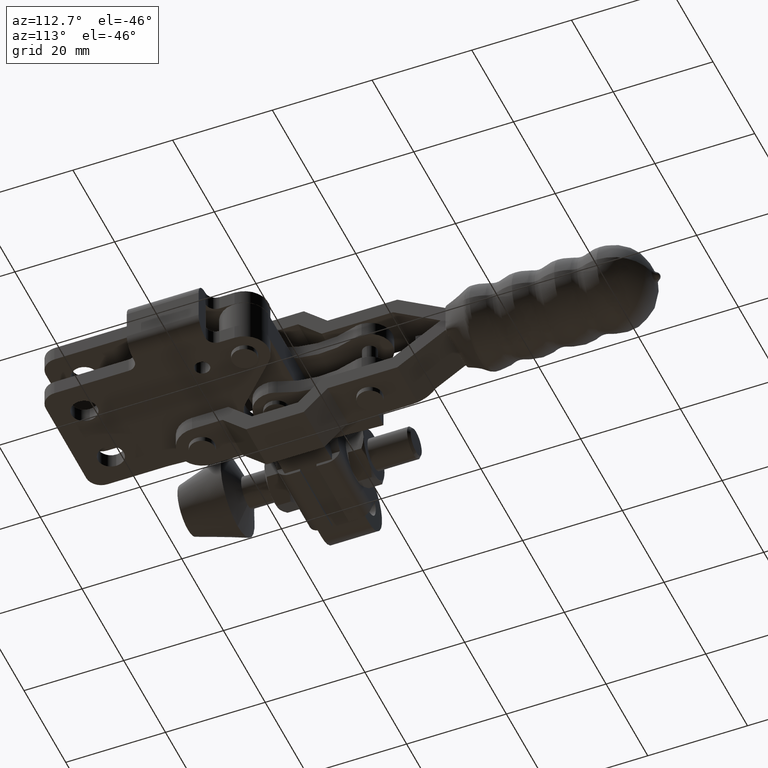
[diagram: clean part render]
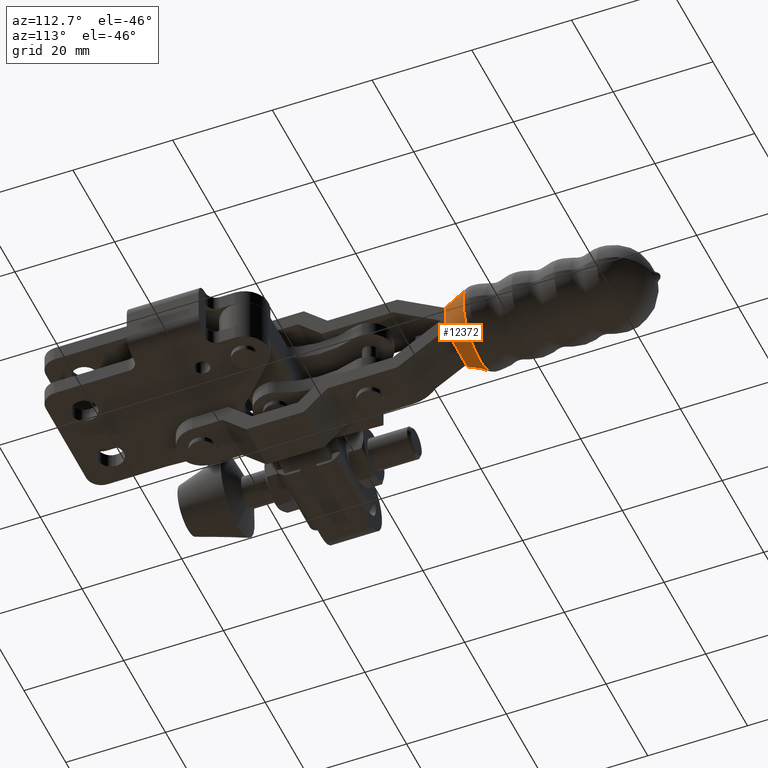
[diagram: same view with one face highlighted and labeled with its STEP entity id]
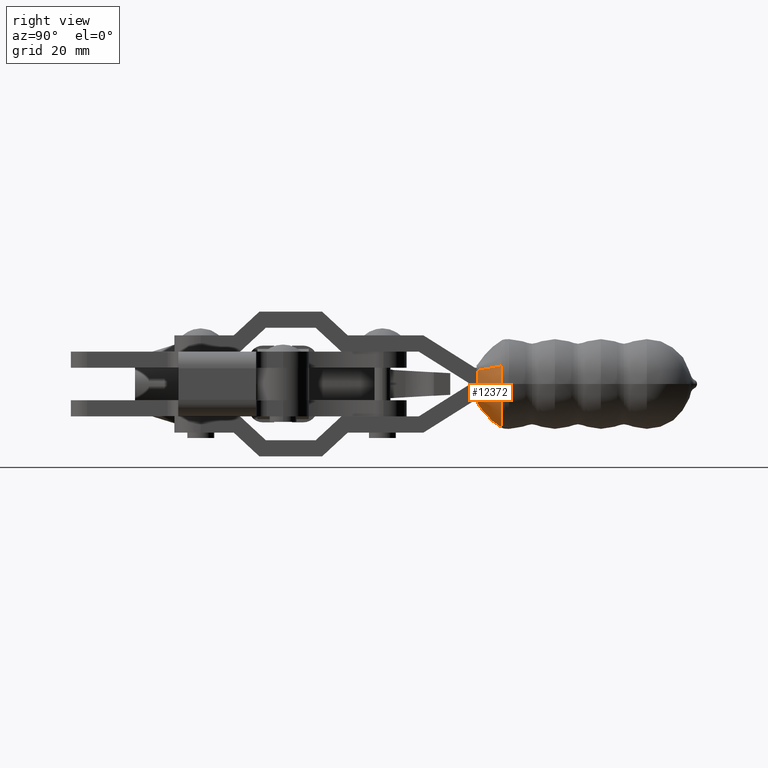
[diagram: same view with one face highlighted and labeled with its STEP entity id]
A machine part, auxiliary view. The second image highlights one B-rep face of the part: STEP entity #12372.
A second angle (right view) of the same face is appended — the face is thin or edge-on in the first view.
In plain terms, the highlighted face is a freeform B-spline surface patch.
Its self-contained STEP definition (entity closure, byte-faithful):
#14 = EDGE_CURVE ( 'NONE', #7230, #7359, #11141, .T. ) ;
#25 = CARTESIAN_POINT ( 'NONE',  ( -28.59685077037510600, 67.86217773445851300, -1.733508512131921400 ) ) ;
#32 = CARTESIAN_POINT ( 'NONE',  ( -21.41071770739004900, 63.29565351529366500, -3.554199398570398600 ) ) ;
#60 = CARTESIAN_POINT ( 'NONE',  ( -27.08059502295594400, 66.41472996804776600, -3.391362433251619000 ) ) ;
#107 = CARTESIAN_POINT ( 'NONE',  ( -25.87136958812624200, 64.80961883612944500, -3.905229992903095600 ) ) ;
#116 = CARTESIAN_POINT ( 'NONE',  ( -15.11637784114788000, 63.38712128945055500, -2.651328539607645100 ) ) ;
#146 = CARTESIAN_POINT ( 'NONE',  ( -20.66037234350212900, 63.25344415514673800, -3.500000000000389000 ) ) ;
#191 = CARTESIAN_POINT ( 'NONE',  ( -13.99440651410349200, 67.86217773445849800, -4.541642735248435900 ) ) ;
#224 = VERTEX_POINT ( 'NONE', #2312 ) ;
#233 = CARTESIAN_POINT ( 'NONE',  ( -14.12119599244192800, 66.40418438406837300, -3.137284130259907000 ) ) ;
#287 = CARTESIAN_POINT ( 'NONE',  ( -14.28006421134263500, 64.78678060654176800, -2.497197712268269100E-006 ) ) ;
#327 = CARTESIAN_POINT ( 'NONE',  ( -15.16037234350213000, 63.25344415514674500, 2.499999999372708000 ) ) ;
#359 = CARTESIAN_POINT ( 'NONE',  ( -15.10321317632978700, 63.35627647389072300, 0.8334545759779454800 ) ) ;
#604 = CARTESIAN_POINT ( 'NONE',  ( -15.49902928182962500, 63.38888158722293300, -3.321401571994040800 ) ) ;
#668 = CARTESIAN_POINT ( 'NONE',  ( -22.16098735645960700, 63.29943348572634700, -3.556354179234992000 ) ) ;
#682 = B_SPLINE_CURVE_WITH_KNOTS ( 'NONE', 3,
 ( #1992, #8142, #10140, #4080, #11167, #5112, #12153, #6151, #13181, #7168 ),
 .UNSPECIFIED., .F., .F.,
 ( 4, 2, 2, 2, 4 ),
 ( -5.989374075165386400E-008, 0.0003909684269582911500, 0.0007819967476573340200, 0.001173025068356376800, 0.001564053389055419500 ),
 .UNSPECIFIED. ) ;
#792 = ORIENTED_EDGE ( 'NONE', *, *, #4713, .T. ) ;
#820 = VERTEX_POINT ( 'NONE', #11648 ) ;
#860 = CARTESIAN_POINT ( 'NONE',  ( -14.44093346233140300, 66.41005908748482500, 3.741929902640940500 ) ) ;
#895 = CARTESIAN_POINT ( 'NONE',  ( -16.29098009008944500, 64.76396972631985700, 4.379833260927069800 ) ) ;
#940 = CARTESIAN_POINT ( 'NONE',  ( -22.88764295937921400, 63.25344415514673800, 3.499999999999601700 ) ) ;
#978 = CARTESIAN_POINT ( 'NONE',  ( -27.57174478939553500, 67.86217773445851300, 4.158255717099888400 ) ) ;
#1015 = CARTESIAN_POINT ( 'NONE',  ( -27.46002236500567400, 66.38004713782561300, 2.531962528561010100 ) ) ;
#1050 = CARTESIAN_POINT ( 'NONE',  ( -15.11374191858637800, 63.38693527292156900, 2.521155462841502700 ) ) ;
#1060 = CARTESIAN_POINT ( 'NONE',  ( -26.96150103930755300, 64.79549411808595500, -1.395587559035471800 ) ) ;
#1108 = CARTESIAN_POINT ( 'NONE',  ( -26.11259450977874500, 63.25344415514673800, -2.888971973730144700 ) ) ;
#1134 = CARTESIAN_POINT ( 'NONE',  ( -25.19625132202470000, 63.39134112229959300, -3.542451302486940200 ) ) ;
#1158 = CARTESIAN_POINT ( 'NONE',  ( -26.28759238556151700, 67.86217773445851300, -5.896036901855827800 ) ) ;
#1197 = CARTESIAN_POINT ( 'NONE',  ( -17.43118836383469600, 66.07731113279588400, -6.568222940374338800 ) ) ;
#1239 = CARTESIAN_POINT ( 'NONE',  ( -15.23562341838326800, 64.82112998357239100, -3.770433091009290000 ) ) ;
#1288 = CARTESIAN_POINT ( 'NONE',  ( -15.16037234350213000, 63.25344415514674500, -2.624783592458684200 ) ) ;
#1333 = CARTESIAN_POINT ( 'NONE',  ( -12.72389391662913600, 67.86217773445851300, 1.733508512131142000 ) ) ;
#1412 = CARTESIAN_POINT ( 'NONE',  ( -15.10390193164297800, 63.36530394600534100, -1.666846277751224700 ) ) ;
#1515 = B_SPLINE_CURVE_WITH_KNOTS ( 'NONE', 3,
 ( #11614, #11665, #9321, #2342 ),
 .UNSPECIFIED., .F., .F.,
 ( 4, 4 ),
 ( 0.0000000000000000000, 0.9717044111243854400 ),
 .UNSPECIFIED. ) ;
#1520 = VERTEX_POINT ( 'NONE', #7306 ) ;
#1526 = ORIENTED_EDGE ( 'NONE', *, *, #3543, .T. ) ;
#1629 = EDGE_CURVE ( 'NONE', #9119, #1721, #9127, .T. ) ;
#1663 = CARTESIAN_POINT ( 'NONE',  ( -15.11365901787371700, 63.38675462020719200, 2.514090349800999700 ) ) ;
#1682 = CARTESIAN_POINT ( 'NONE',  ( -15.31747800420825500, 63.38741934016381700, -3.134215451758072500 ) ) ;
#1709 = CARTESIAN_POINT ( 'NONE',  ( -15.11374215309768800, 63.38693578395724900, 2.521175448385817800 ) ) ;
#1711 = VERTEX_POINT ( 'NONE', #11351 ) ;
#1721 = VERTEX_POINT ( 'NONE', #9453 ) ;
#1803 = CARTESIAN_POINT ( 'NONE',  ( -15.11365916946805800, 63.38675494322329500, -2.514099072277054000 ) ) ;
#1846 = CARTESIAN_POINT ( 'NONE',  ( -14.61110389430739300, 64.82606397978638300, 2.749667477042284400 ) ) ;
#1889 = CARTESIAN_POINT ( 'NONE',  ( -15.44700713563533200, 63.25344415514674500, 3.242422886584518600 ) ) ;
#1935 = CARTESIAN_POINT ( 'NONE',  ( -16.95864119665633800, 67.86217773445851300, 7.482217043222414400 ) ) ;
#1968 = CARTESIAN_POINT ( 'NONE',  ( -25.66478027444167900, 66.27449532297966100, 5.259667452254515900 ) ) ;
#1992 = CARTESIAN_POINT ( 'NONE',  ( -25.21423687797788200, 63.39240676943508400, -3.541894457099183500 ) ) ;
#2003 = CARTESIAN_POINT ( 'NONE',  ( -26.37677400679339000, 64.83175161670898500, 3.492177016874644700 ) ) ;
#2042 = CARTESIAN_POINT ( 'NONE',  ( -15.11374173584640900, 63.38693486700741900, -2.521135670013632300 ) ) ;
#2055 = CARTESIAN_POINT ( 'NONE',  ( -26.16037234350212900, 63.25344415514673800, 2.077217232703579200 ) ) ;
#2063 = ORIENTED_EDGE ( 'NONE', *, *, #9942, .T. ) ;
#2107 = CARTESIAN_POINT ( 'NONE',  ( -28.23291278512271800, 67.86217773445851300, -2.822329274111425400 ) ) ;
#2142 = CARTESIAN_POINT ( 'NONE',  ( -26.87981273420616900, 66.41005910534764200, -3.741927400077077700 ) ) ;
#2163 = CARTESIAN_POINT ( 'NONE',  ( -25.21419696706695400, 63.39240440466506500, -3.541895692838549900 ) ) ;
#2188 = CARTESIAN_POINT ( 'NONE',  ( -25.02976583605593300, 64.76396969779693800, -4.379832008545722700 ) ) ;
#2252 = CARTESIAN_POINT ( 'NONE',  ( -18.43310172762505400, 63.25344415514674500, -3.500000000000387700 ) ) ;
#2303 = CARTESIAN_POINT ( 'NONE',  ( -13.74899989760869600, 67.86217773445851300, -4.158255717100669100 ) ) ;
#2312 = CARTESIAN_POINT ( 'NONE',  ( -13.32129355269926700, 67.86217773445849800, 3.335944905909685500 ) ) ;
#2342 = CARTESIAN_POINT ( 'NONE',  ( -15.11374238761837300, 63.38693629499125800, 2.521195433930064800 ) ) ;
#2346 = CARTESIAN_POINT ( 'NONE',  ( -13.86072352009450800, 66.38004713740225800, -2.531965748103189600 ) ) ;
#2368 = CARTESIAN_POINT ( 'NONE',  ( -16.14243634537453800, 63.39028891913030600, -3.542988139781885000 ) ) ;
#2371 = CARTESIAN_POINT ( 'NONE',  ( -15.11374243961766700, 63.38693640060494500, -2.521195646282143900 ) ) ;
#2393 = CARTESIAN_POINT ( 'NONE',  ( -14.35924291887607000, 64.79549412481841800, 1.395585106292565500 ) ) ;
#2425 = CARTESIAN_POINT ( 'NONE',  ( -25.21423687797788200, 63.39240676943508400, -3.541894457099183500 ) ) ;
#2427 = CARTESIAN_POINT ( 'NONE',  ( -15.10390184324692300, 63.36530348996338800, 1.666821302933913000 ) ) ;
#2626 = CARTESIAN_POINT ( 'NONE',  ( -27.93054533697051400, 67.86217773445858400, -3.487537660046323000 ) ) ;
#2737 = CARTESIAN_POINT ( 'NONE',  ( -15.11374243961766700, 63.38693640060494500, -2.521195646282143900 ) ) ;
#2859 = ORIENTED_EDGE ( 'NONE', *, *, #14, .T. ) ;
#2885 = CARTESIAN_POINT ( 'NONE',  ( -13.52854442048895000, 67.86217773445855500, -3.767653287943438600 ) ) ;
#2903 = CARTESIAN_POINT ( 'NONE',  ( -13.39019935003380400, 67.86217773445849800, 3.487537660045672900 ) ) ;
#2945 = CARTESIAN_POINT ( 'NONE',  ( -14.67214061304732200, 66.38881585487973800, 4.081102566512451600 ) ) ;
#2982 = CARTESIAN_POINT ( 'NONE',  ( -17.93214239015328100, 64.66537753433743800, 5.034110041957690700 ) ) ;
#2987 = B_SPLINE_CURVE_WITH_KNOTS ( 'NONE', 3,
 ( #10251, #11279, #1134, #8301, #2163, #9310, #3225 ),
 .UNSPECIFIED., .F., .F.,
 ( 4, 3, 4 ),
 ( 0.0000000000000000000, 5.389710358306839500E-005, 5.395710358307060700E-005 ),
 .UNSPECIFIED. ) ;
#3023 = CARTESIAN_POINT ( 'NONE',  ( -24.39474795603560200, 63.25344415514673800, 3.499999999999605600 ) ) ;
#3069 = CARTESIAN_POINT ( 'NONE',  ( -27.79220026651529100, 67.86217773445851300, 3.767653287942651600 ) ) ;
#3107 = CARTESIAN_POINT ( 'NONE',  ( -27.76262873487382200, 66.33754405852700100, 1.550157479259302900 ) ) ;
#3144 = CARTESIAN_POINT ( 'NONE',  ( -26.81019813875174400, 64.81674564677497600, -2.304587792361288700 ) ) ;
#3152 = B_SPLINE_CURVE_WITH_KNOTS ( 'NONE', 3,
 ( #12907, #116, #5453, #8659, #1682, #604, #6020, #5798, #9277, #9865 ),
 .UNSPECIFIED., .F., .F.,
 ( 4, 2, 2, 2, 4 ),
 ( -5.998032529275255900E-008, 0.0003904191419590533200, 0.0007808982642433993300, 0.001171377386527745500, 0.001561856508812091600 ),
 .UNSPECIFIED. ) ;
#3192 = CARTESIAN_POINT ( 'NONE',  ( -25.87373755136893600, 63.25344415514674500, -3.242422886585292200 ) ) ;
#3225 = CARTESIAN_POINT ( 'NONE',  ( -25.21423687797788200, 63.39240676943508400, -3.541894457099183500 ) ) ;
#3247 = CARTESIAN_POINT ( 'NONE',  ( -24.36210349034789500, 67.86217773445851300, -7.482217043223183600 ) ) ;
#3294 = CARTESIAN_POINT ( 'NONE',  ( -15.65596722937116400, 66.27449538959609800, -5.259670272602082100 ) ) ;
#3334 = CARTESIAN_POINT ( 'NONE',  ( -14.94397158405657100, 64.83175160597426200, -3.492178507849468300 ) ) ;
#3384 = CARTESIAN_POINT ( 'NONE',  ( -15.16037234350213000, 63.25344415514674500, -2.077217232704361600 ) ) ;
#3429 = CARTESIAN_POINT ( 'NONE',  ( -13.08783190188152500, 67.86217773445849800, 2.822329274110647800 ) ) ;
#3543 = EDGE_CURVE ( 'NONE', #4120, #10617, #3152, .T. ) ;
#3561 = CARTESIAN_POINT ( 'NONE',  ( -19.91006478821558500, 63.29565333401684800, -3.554199333424658700 ) ) ;
#3617 = CARTESIAN_POINT ( 'NONE',  ( -12.59867196777502600, 67.86217773445851300, -3.967678686478328600E-013 ) ) ;
#3934 = CARTESIAN_POINT ( 'NONE',  ( -14.64078309908190300, 64.82881426923889000, 2.881031666282993800 ) ) ;
#3964 = CARTESIAN_POINT ( 'NONE',  ( -15.11374197043058000, 63.38693537819941100, -2.521155662103393300 ) ) ;
#3967 = CARTESIAN_POINT ( 'NONE',  ( -16.16037234358134700, 63.38924878677582300, -3.543506530889019200 ) ) ;
#3973 = CARTESIAN_POINT ( 'NONE',  ( -15.79910338840238800, 63.25344415514674500, 3.459759483545663100 ) ) ;
#4015 = CARTESIAN_POINT ( 'NONE',  ( -20.66037234350212200, 67.86217773445848400, 8.352547381350165200 ) ) ;
#4022 = CARTESIAN_POINT ( 'NONE',  ( -27.99945113430497300, 67.86217773445851300, -3.335944905910462700 ) ) ;
#4058 = CARTESIAN_POINT ( 'NONE',  ( -26.46708882033791400, 66.36579350468231600, 4.310463614909848800 ) ) ;
#4080 = CARTESIAN_POINT ( 'NONE',  ( -25.71269480469608100, 63.38971674834371600, -3.397125375761127500 ) ) ;
#4092 = CARTESIAN_POINT ( 'NONE',  ( -26.59659374667862200, 64.83408706094660100, 3.140169131196203000 ) ) ;
#4094 = CARTESIAN_POINT ( 'NONE',  ( -27.13473075420818100, 67.86217773445854100, -4.806858999310121800 ) ) ;
#4120 = VERTEX_POINT ( 'NONE', #2737 ) ;
#4133 = CARTESIAN_POINT ( 'NONE',  ( -26.16037234350212900, 63.25344415514673800, 1.241022134309190300 ) ) ;
#4181 = CARTESIAN_POINT ( 'NONE',  ( -27.93054533697043600, 67.86217773445851300, -3.487537660046448700 ) ) ;
#4192 = B_SPLINE_CURVE_WITH_KNOTS ( 'NONE', 3,
 ( #12270, #9976, #8267, #10723, #7270 ),
 .UNSPECIFIED., .F., .F.,
 ( 4, 1, 4 ),
 ( 0.9295890400382791400, 0.9647945200191394600, 1.000000000000000000 ),
 .UNSPECIFIED. ) ;
#4227 = CARTESIAN_POINT ( 'NONE',  ( -26.64860578204293200, 66.38881588086778200, -4.081100078991514800 ) ) ;
#4246 = FACE_OUTER_BOUND ( 'NONE', #8036, .T. ) ;
#4262 = CARTESIAN_POINT ( 'NONE',  ( -15.11357737732938700, 63.38657590826428400, -2.507062442631548600 ) ) ;
#4269 = CARTESIAN_POINT ( 'NONE',  ( -23.38860420906735600, 64.66537745352121600, -5.034108968751812800 ) ) ;
#4306 = CARTESIAN_POINT ( 'NONE',  ( -16.92599673096865600, 63.25344415514674500, -3.500000000000387700 ) ) ;
#4366 = CARTESIAN_POINT ( 'NONE',  ( -13.52854442048895000, 67.86217773445851300, -3.767653287943436300 ) ) ;
#4410 = CARTESIAN_POINT ( 'NONE',  ( -13.55811662103171000, 66.33754404163113300, -1.550160976912246600 ) ) ;
#4456 = CARTESIAN_POINT ( 'NONE',  ( -14.51054695411301600, 64.81674564750302600, 2.304588809284127600 ) ) ;
#4495 = CARTESIAN_POINT ( 'NONE',  ( -15.11349600151571900, 63.38639700697301300, 2.499999999654158000 ) ) ;
#4598 = CARTESIAN_POINT ( 'NONE',  ( -27.79220026651534100, 67.86217773445855500, -3.767653287943369700 ) ) ;
#4665 = ORIENTED_EDGE ( 'NONE', *, *, #5618, .T. ) ;
#4713 = EDGE_CURVE ( 'NONE', #1711, #4120, #10376, .T. ) ;
#4871 = CARTESIAN_POINT ( 'NONE',  ( -27.32633817290076500, 67.86217773445855500, -4.541642735248432300 ) ) ;
#4949 = ORIENTED_EDGE ( 'NONE', *, *, #1629, .T. ) ;
#4962 = CARTESIAN_POINT ( 'NONE',  ( -13.52854442048894000, 67.86217773445851300, 3.767653287942651600 ) ) ;
#5005 = CARTESIAN_POINT ( 'NONE',  ( -15.11349634719477700, 63.38639775936849200, -2.500025781877357000 ) ) ;
#5017 = CARTESIAN_POINT ( 'NONE',  ( -14.85365502282003400, 66.36579350851893400, 4.310462483560809400 ) ) ;
#5050 = CARTESIAN_POINT ( 'NONE',  ( -20.66037203388255600, 64.60794641732201200, 5.378788196882969600 ) ) ;
#5058 = CARTESIAN_POINT ( 'NONE',  ( -27.27986441304044600, 66.44009420930643700, -3.008857082872124200 ) ) ;
#5086 = CARTESIAN_POINT ( 'NONE',  ( -25.27564764918513500, 63.25344415514673800, 3.499999999999605600 ) ) ;
#5112 = CARTESIAN_POINT ( 'NONE',  ( -26.00324517610758300, 63.38741907725474800, -3.134275781985839300 ) ) ;
#5128 = CARTESIAN_POINT ( 'NONE',  ( -27.93054533697042900, 67.86217773445851300, 3.487537660045671100 ) ) ;
#5181 = CARTESIAN_POINT ( 'NONE',  ( -27.92098880499890300, 66.32011705706614200, 2.327073177621804500E-006 ) ) ;
#5188 = CARTESIAN_POINT ( 'NONE',  ( -19.15972175869865500, 63.29943271107981000, -3.556354389700895800 ) ) ;
#5217 = CARTESIAN_POINT ( 'NONE',  ( -26.67996220864932200, 64.82881426945556300, -2.881030337294242700 ) ) ;
#5257 = CARTESIAN_POINT ( 'NONE',  ( -25.52164129860185300, 63.25344415514674500, -3.459759483546452700 ) ) ;
#5305 = CARTESIAN_POINT ( 'NONE',  ( -20.66037234350211400, 67.86217773445851300, -8.352547381350950300 ) ) ;
#5351 = CARTESIAN_POINT ( 'NONE',  ( -14.85365805013328700, 66.36579349466198600, -4.310466542875460900 ) ) ;
#5379 = CARTESIAN_POINT ( 'NONE',  ( -27.99945113430497300, 67.86217773445851300, -3.335944905910462700 ) ) ;
#5392 = CARTESIAN_POINT ( 'NONE',  ( -14.72415174310418900, 64.83408706046212400, -3.140170650863629600 ) ) ;
#5445 = CARTESIAN_POINT ( 'NONE',  ( -15.16037234350212300, 63.25344415514674500, -1.241022134309972100 ) ) ;
#5453 = CARTESIAN_POINT ( 'NONE',  ( -15.14346733860624300, 63.38703287024581800, -2.782320642562773600 ) ) ;
#5493 = CARTESIAN_POINT ( 'NONE',  ( -13.32129355269926700, 67.86217773445849800, 3.335944905909685500 ) ) ;
#5582 = ORIENTED_EDGE ( 'NONE', *, *, #6465, .T. ) ;
#5612 = CARTESIAN_POINT ( 'NONE',  ( -15.11357712777895500, 63.38657536948962000, 2.507045190319064700 ) ) ;
#5618 = EDGE_CURVE ( 'NONE', #11106, #224, #4192, .T. ) ;
#5658 = CARTESIAN_POINT ( 'NONE',  ( -16.16037234358134700, 63.38924878677582300, -3.543506530889019200 ) ) ;
#5755 = ORIENTED_EDGE ( 'NONE', *, *, #7603, .T. ) ;
#5798 = CARTESIAN_POINT ( 'NONE',  ( -15.84555100115471800, 63.39173769702539800, -3.504452013763038800 ) ) ;
#5822 = CARTESIAN_POINT ( 'NONE',  ( -25.16039627163809200, 63.38925048690469300, -3.543505671517975600 ) ) ;
#6000 = CARTESIAN_POINT ( 'NONE',  ( -14.72415056935390100, 64.83408706134594000, 3.140168414439826500 ) ) ;
#6002 = EDGE_CURVE ( 'NONE', #10617, #7230, #7623, .T. ) ;
#6020 = CARTESIAN_POINT ( 'NONE',  ( -15.60846172053473400, 63.38971990361915900, -3.397326076710557100 ) ) ;
#6032 = CARTESIAN_POINT ( 'NONE',  ( -16.04509703781912600, 63.25344415514674500, 3.499999999999605200 ) ) ;
#6057 = CARTESIAN_POINT ( 'NONE',  ( -14.18601393279605300, 67.86217773445855500, -4.806858999310121800 ) ) ;
#6071 = CARTESIAN_POINT ( 'NONE',  ( -24.36210349034790900, 67.86217773445851300, 7.482217043222404700 ) ) ;
#6077 = CARTESIAN_POINT ( 'NONE',  ( -26.20700232796030700, 63.38693623797237100, -2.521195318184253700 ) ) ;
#6122 = CARTESIAN_POINT ( 'NONE',  ( -26.64860326153086200, 66.38881584268418100, 4.081103750636813700 ) ) ;
#6151 = CARTESIAN_POINT ( 'NONE',  ( -26.17700060266740900, 63.38703307195687800, -2.783008020768408500 ) ) ;
#6161 = CARTESIAN_POINT ( 'NONE',  ( -26.67996126068273500, 64.82881426953962000, 2.881032315863575600 ) ) ;
#6166 = B_SPLINE_CURVE_WITH_KNOTS ( 'NONE', 3,
 ( #4022, #5058, #12101, #6077 ),
 .UNSPECIFIED., .F., .F.,
 ( 4, 4 ),
 ( 0.0000000000000000000, 0.9717044232108360500 ),
 .UNSPECIFIED. ) ;
#6199 = CARTESIAN_POINT ( 'NONE',  ( -26.16037234350212900, 63.25344415514673800, -3.906199242960783000E-013 ) ) ;
#6250 = CARTESIAN_POINT ( 'NONE',  ( -27.79220026651529500, 67.86217773445851300, -3.767653287943426600 ) ) ;
#6302 = CARTESIAN_POINT ( 'NONE',  ( -26.46709152706735000, 66.36579351711213800, -4.310459985805803000 ) ) ;
#6342 = CARTESIAN_POINT ( 'NONE',  ( -20.66037514823064900, 64.60794641590676700, -5.378788181775009400 ) ) ;
#6380 = CARTESIAN_POINT ( 'NONE',  ( -16.04509703781912600, 63.25344415514673800, -3.500000000000389000 ) ) ;
#6441 = CARTESIAN_POINT ( 'NONE',  ( -13.39019935003380400, 67.86217773445849800, -3.487537660046454900 ) ) ;
#6465 = EDGE_CURVE ( 'NONE', #820, #11106, #8630, .T. ) ;
#6489 = CARTESIAN_POINT ( 'NONE',  ( -13.39975607918313800, 66.32011705793681200, -4.994395032398730400E-006 ) ) ;
#6533 = CARTESIAN_POINT ( 'NONE',  ( -14.61110389430739300, 64.82606397978638300, 2.749667477042284400 ) ) ;
#6555 = VERTEX_POINT ( 'NONE', #2425 ) ;
#6671 = CARTESIAN_POINT ( 'NONE',  ( -16.10650816742076300, 63.39240643049917900, -3.541894646774326200 ) ) ;
#7012 = CARTESIAN_POINT ( 'NONE',  ( -13.74899989760869400, 67.86217773445849800, 4.158255717099892800 ) ) ;
#7059 = CARTESIAN_POINT ( 'NONE',  ( -15.65596344921023000, 66.27449529749297600, 5.259666521854534000 ) ) ;
#7101 = CARTESIAN_POINT ( 'NONE',  ( -23.38860171445882200, 64.66537755747079100, 5.034110336531957100 ) ) ;
#7143 = CARTESIAN_POINT ( 'NONE',  ( -25.52164129860186000, 63.25344415514674500, 3.459759483545664000 ) ) ;
#7168 = CARTESIAN_POINT ( 'NONE',  ( -26.20700232796030700, 63.38693623797237100, -2.521195318184253700 ) ) ;
#7184 = CARTESIAN_POINT ( 'NONE',  ( -28.23291278512271800, 67.86217773445851300, 2.822329274110647400 ) ) ;
#7230 = VERTEX_POINT ( 'NONE', #3967 ) ;
#7232 = CARTESIAN_POINT ( 'NONE',  ( -27.76262973511297000, 66.33754408102518600, -1.550152983760968200 ) ) ;
#7270 = CARTESIAN_POINT ( 'NONE',  ( -13.32129355269926700, 67.86217773445849800, 3.335944905909685500 ) ) ;
#7273 = CARTESIAN_POINT ( 'NONE',  ( -26.59659476636734600, 64.83408706159727300, -3.140167203490881000 ) ) ;
#7306 = CARTESIAN_POINT ( 'NONE',  ( -26.20700232796030700, 63.38693623797237100, -2.521195318184253700 ) ) ;
#7307 = CARTESIAN_POINT ( 'NONE',  ( -25.27564764918513500, 63.25344415514673800, -3.500000000000387700 ) ) ;
#7353 = CARTESIAN_POINT ( 'NONE',  ( -16.95864119665634500, 67.86217773445851300, -7.482217043223183600 ) ) ;
#7359 = VERTEX_POINT ( 'NONE', #5822 ) ;
#7403 = CARTESIAN_POINT ( 'NONE',  ( -14.67214344836413500, 66.38881581199805700, -4.081106698472132700 ) ) ;
#7443 = CARTESIAN_POINT ( 'NONE',  ( -14.64078416797203100, 64.82881426960757700, -2.881033861359296300 ) ) ;
#7486 = CARTESIAN_POINT ( 'NONE',  ( -15.16037234350213200, 63.25344415514673800, -3.921378073375581100E-013 ) ) ;
#7566 = CARTESIAN_POINT ( 'NONE',  ( -15.10321325212965200, 63.35627680034704000, -0.8334863886015052600 ) ) ;
#7581 = CARTESIAN_POINT ( 'NONE',  ( -16.10652808755981300, 63.39240525020760200, -3.541895263559758700 ) ) ;
#7603 = EDGE_CURVE ( 'NONE', #224, #9119, #1515, .T. ) ;
#7612 = CARTESIAN_POINT ( 'NONE',  ( -24.41103371667789500, 63.34579346220829900, -3.565164770807786700 ) ) ;
#7623 = B_SPLINE_CURVE_WITH_KNOTS ( 'NONE', 3,
 ( #8297, #7581, #8845, #12416, #11419, #2368, #5658 ),
 .UNSPECIFIED., .F., .F.,
 ( 4, 3, 4 ),
 ( -5.989381495679090100E-008, 0.0000000000000000000, 5.392082832232061100E-005 ),
 .UNSPECIFIED. ) ;
#7653 = CARTESIAN_POINT ( 'NONE',  ( -16.16037234358134700, 63.38924878677582300, -3.543506530889019200 ) ) ;
#7782 = CARTESIAN_POINT ( 'NONE',  ( -12.59864672274359900, 67.86217773445855500, -0.5778361707094219500 ) ) ;
#7790 = B_SPLINE_CURVE_WITH_KNOTS ( 'NONE', 3,
 ( #4495, #2427, #359, #7566, #1412, #8564 ),
 .UNSPECIFIED., .F., .F.,
 ( 4, 2, 4 ),
 ( 0.0000000000000000000, 0.002500218534459211100, 0.005000437068918422100 ),
 .UNSPECIFIED. ) ;
#7802 = CARTESIAN_POINT ( 'NONE',  ( -15.03315230144271700, 67.86217773445855500, -5.896036901855835800 ) ) ;
#7964 = CARTESIAN_POINT ( 'NONE',  ( -13.39019935003379800, 67.86217773445854100, -3.487537660046457200 ) ) ;
#7979 = CARTESIAN_POINT ( 'NONE',  ( -14.06183544511264900, 66.39868380442597100, 2.999334954711860000 ) ) ;
#7982 = CARTESIAN_POINT ( 'NONE',  ( -20.66037234350211400, 67.86217773445855500, -8.352547381350961000 ) ) ;
#8031 = CARTESIAN_POINT ( 'NONE',  ( -14.94397029898336800, 64.83175162131580300, 3.492176394612729300 ) ) ;
#8036 = EDGE_LOOP ( 'NONE', ( #12585, #5582, #4665, #5755, #4949, #12225, #792, #1526, #10471, #2859, #2063, #12652 ) ) ;
#8071 = CARTESIAN_POINT ( 'NONE',  ( -16.92599673096864900, 63.25344415514674500, 3.499999999999605200 ) ) ;
#8098 = CARTESIAN_POINT ( 'NONE',  ( -24.36210349034789500, 67.86217773445855500, -7.482217043223188900 ) ) ;
#8111 = CARTESIAN_POINT ( 'NONE',  ( -26.28759238556151700, 67.86217773445849800, 5.896036901855048900 ) ) ;
#8142 = CARTESIAN_POINT ( 'NONE',  ( -25.34442192275114900, 63.39273047844001500, -3.535492272880351700 ) ) ;
#8152 = CARTESIAN_POINT ( 'NONE',  ( -26.87981046221784000, 66.41005907827118900, 3.741931147164768900 ) ) ;
#8193 = CARTESIAN_POINT ( 'NONE',  ( -26.81019735425390100, 64.81674564648618300, 2.304589880632294200 ) ) ;
#8223 = CARTESIAN_POINT ( 'NONE',  ( -26.16037234350212900, 63.25344415514673800, -1.241022134309974300 ) ) ;
#8267 = CARTESIAN_POINT ( 'NONE',  ( -12.72389391662937000, 67.86217773445855500, 1.733508512131840100 ) ) ;
#8271 = CARTESIAN_POINT ( 'NONE',  ( -27.57174478939553500, 67.86217773445849800, -4.158255717100670000 ) ) ;
#8297 = CARTESIAN_POINT ( 'NONE',  ( -16.10650816742076300, 63.39240643049917900, -3.541894646774326200 ) ) ;
#8301 = CARTESIAN_POINT ( 'NONE',  ( -25.21417701160917300, 63.39240322230097000, -3.541896310673398100 ) ) ;
#8323 = CARTESIAN_POINT ( 'NONE',  ( -25.66478371607626100, 66.27449524044710900, -5.259664017091057400 ) ) ;
#8360 = CARTESIAN_POINT ( 'NONE',  ( -17.93214504572987200, 64.66537764397131100, -5.034111470187364800 ) ) ;
#8398 = CARTESIAN_POINT ( 'NONE',  ( -15.79910338840240600, 63.25344415514674500, -3.459759483546446000 ) ) ;
#8446 = CARTESIAN_POINT ( 'NONE',  ( -13.08783190188152500, 67.86217773445849800, -2.822329274111430300 ) ) ;
#8485 = CARTESIAN_POINT ( 'NONE',  ( -13.08783190188152000, 67.86217773445854100, -2.822329274111431600 ) ) ;
#8502 = CARTESIAN_POINT ( 'NONE',  ( -13.55811349425002500, 66.33754409449007000, 1.550148078275936700 ) ) ;
#8537 = CARTESIAN_POINT ( 'NONE',  ( -16.90941888030199200, 63.34581058340025800, -3.565155677983489200 ) ) ;
#8564 = CARTESIAN_POINT ( 'NONE',  ( -15.11349634719477700, 63.38639775936849200, -2.500025781877357000 ) ) ;
#8630 = B_SPLINE_CURVE_WITH_KNOTS ( 'NONE', 3,
 ( #5379, #2626, #4598, #12614, #4871, #4094, #10598, #8098, #7982, #13177, #7802, #6057, #12725, #12303, #2885, #7964, #8485, #11522, #7782, #3617 ),
 .UNSPECIFIED., .F., .F.,
 ( 4, 1, 1, 1, 2, 1, 1, 1, 2, 1, 1, 1, 2, 1, 4 ),
 ( 0.5000000000000000000, 0.5103908357545202700, 0.5207816715090407600, 0.5311725072635612400, 0.5415633430180815100, 0.6105761915281803200, 0.6795890400382791400, 0.7486018885483778400, 0.8176147370584767600, 0.8280055728129971400, 0.8383964085675174000, 0.8487872443220378900, 0.8591780800765584900, 0.8943835600574189200, 0.9295890400382791400 ),
 .UNSPECIFIED. ) ;
#8659 = CARTESIAN_POINT ( 'NONE',  ( -15.24438597218786400, 63.38716236276810200, -3.023614688222984200 ) ) ;
#8663 = CARTESIAN_POINT ( 'NONE',  ( -23.66114954333586700, 63.32391105791578000, -3.560192299442562500 ) ) ;
#8749 = EDGE_CURVE ( 'NONE', #820, #1520, #6166, .T. ) ;
#8845 = CARTESIAN_POINT ( 'NONE',  ( -16.10654800769983200, 63.39240406991822100, -3.541895880318096400 ) ) ;
#8936 = CARTESIAN_POINT ( 'NONE',  ( -15.11349600151571900, 63.38639700697301300, 2.499999999654158000 ) ) ;
#8991 = CARTESIAN_POINT ( 'NONE',  ( -15.16037234350213000, 63.25344415514674500, 2.499999999372708000 ) ) ;
#9027 = CARTESIAN_POINT ( 'NONE',  ( -13.99440651410349200, 67.86217773445849800, 4.541642735247645400 ) ) ;
#9067 = CARTESIAN_POINT ( 'NONE',  ( -17.43118305268151900, 66.07731091352808100, 6.568220083915774100 ) ) ;
#9119 = VERTEX_POINT ( 'NONE', #12760 ) ;
#9122 = CARTESIAN_POINT ( 'NONE',  ( -25.02976411523864200, 64.76396973906319900, 4.379833726127060300 ) ) ;
#9127 = B_SPLINE_CURVE_WITH_KNOTS ( 'NONE', 3,
 ( #9778, #1709, #1050, #10362, #1663, #5612, #8936 ),
 .UNSPECIFIED., .F., .F.,
 ( 4, 3, 4 ),
 ( -5.998035687819882900E-008, 1.217609861678056700E-021, 2.114374506716399600E-005 ),
 .UNSPECIFIED. ) ;
#9154 = CARTESIAN_POINT ( 'NONE',  ( -25.87373755136893600, 63.25344415514674500, 3.242422886584520400 ) ) ;
#9190 = CARTESIAN_POINT ( 'NONE',  ( -28.59685077037510600, 67.86217773445851300, 1.733508512131143800 ) ) ;
#9237 = CARTESIAN_POINT ( 'NONE',  ( -27.46002393400135600, 66.38004713840319900, -2.531958352018216300 ) ) ;
#9277 = CARTESIAN_POINT ( 'NONE',  ( -15.97650596598888100, 63.39272971318487700, -3.535501481604233800 ) ) ;
#9283 = B_SPLINE_SURFACE_WITH_KNOTS ( 'NONE', 3, 3, ( 
 ( #9954, #7979, #1846, #8991 ),
 ( #2903, #9992, #3934, #11012 ),
 ( #4962, #12019, #6000, #13026 ),
 ( #7012, #860, #8031, #1889 ),
 ( #9027, #2945, #10037, #3973 ),
 ( #11052, #5017, #12052, #6032 ),
 ( #13068, #7059, #895, #8071 ),
 ( #1935, #9067, #2982, #10079 ),
 ( #4015, #11084, #5050, #12097 ),
 ( #6071, #13103, #7101, #940 ),
 ( #8111, #1968, #9122, #3023 ),
 ( #10117, #4058, #11132, #5086 ),
 ( #12132, #6122, #13141, #7143 ),
 ( #978, #8152, #2003, #9154 ),
 ( #3069, #10150, #4092, #11176 ),
 ( #5128, #12164, #6161, #13192 ),
 ( #7184, #1015, #8193, #2055 ),
 ( #9190, #3107, #10200, #4133 ),
 ( #11216, #5181, #12217, #6199 ),
 ( #25, #7232, #1060, #8223 ),
 ( #2107, #9237, #3144, #10234 ),
 ( #4181, #11257, #5217, #12272 ),
 ( #6250, #60, #7273, #1108 ),
 ( #8271, #2142, #9285, #3192 ),
 ( #10275, #4227, #11314, #5257 ),
 ( #12316, #6302, #107, #7307 ),
 ( #1158, #8323, #2188, #9324 ),
 ( #3247, #10322, #4269, #11355 ),
 ( #5305, #12351, #6342, #146 ),
 ( #7353, #1197, #8360, #2252 ),
 ( #9369, #3294, #10371, #4306 ),
 ( #11399, #5351, #12397, #6380 ),
 ( #191, #7403, #1239, #8398 ),
 ( #2303, #9417, #3334, #10404 ),
 ( #4366, #11447, #5392, #12437 ),
 ( #6441, #233, #7443, #1288 ),
 ( #8446, #2346, #9457, #3384 ),
 ( #10451, #4410, #11496, #5445 ),
 ( #12486, #6489, #287, #7486 ),
 ( #1333, #8502, #2393, #9495 ),
 ( #3429, #10500, #4456, #11535 ),
 ( #5493, #12529, #6533, #327 ) ),
 .UNSPECIFIED., .T., .F., .F.,
 ( 4, 1, 1, 1, 2, 1, 1, 1, 2, 1, 1, 1, 2, 1, 1, 1, 2, 1, 1, 1, 2, 1, 1, 1, 2, 1, 1, 1, 2, 1, 1, 1, 4 ),
 ( 4, 4 ),
 ( 0.0000000000000000000, 0.01039083575452040000, 0.02078167150904080100, 0.03117250726356120300, 0.04156334301808160100, 0.1105761915281803800, 0.1795890400382791600, 0.2486018885483779200, 0.3176147370584767600, 0.3280055728129971900, 0.3383964085675177400, 0.3487872443220380600, 0.3591780800765584900, 0.3943835600574188100, 0.4295890400382792500, 0.4647945200191395700, 0.4999999999999999400, 0.5103908357545202700, 0.5207816715090407600, 0.5311725072635612400, 0.5415633430180815100, 0.6105761915281803200, 0.6795890400382791400, 0.7486018885483779500, 0.8176147370584767600, 0.8280055728129972500, 0.8383964085675175100, 0.8487872443220380000, 0.8591780800765584900, 0.8943835600574190400, 0.9295890400382792500, 0.9647945200191394600, 1.000000000000000000 ),
 ( 0.0000000000000000000, 1.000000000000000000 ),
 .UNSPECIFIED. ) ;
#9285 = CARTESIAN_POINT ( 'NONE',  ( -26.37677514278754700, 64.83175163024718300, -3.492175143331185200 ) ) ;
#9310 = CARTESIAN_POINT ( 'NONE',  ( -25.21421692252290500, 63.39240558704896200, -3.541895074982458300 ) ) ;
#9321 = CARTESIAN_POINT ( 'NONE',  ( -14.57986700462938000, 64.91497301722323200, 2.763866063302203600 ) ) ;
#9324 = CARTESIAN_POINT ( 'NONE',  ( -24.39474795603560200, 63.25344415514673800, -3.500000000000386800 ) ) ;
#9363 = CARTESIAN_POINT ( 'NONE',  ( -25.16039627163809200, 63.38925048690469300, -3.543505671517975600 ) ) ;
#9369 = CARTESIAN_POINT ( 'NONE',  ( -15.03315230144272300, 67.86217773445851300, -5.896036901855830500 ) ) ;
#9417 = CARTESIAN_POINT ( 'NONE',  ( -14.44093603247782700, 66.41005905680179900, -3.741934129113632300 ) ) ;
#9453 = CARTESIAN_POINT ( 'NONE',  ( -15.11349600151571900, 63.38639700697301300, 2.499999999654158000 ) ) ;
#9457 = CARTESIAN_POINT ( 'NONE',  ( -14.51054793179831400, 64.81674564627448400, -2.304591490403775600 ) ) ;
#9495 = CARTESIAN_POINT ( 'NONE',  ( -15.16037234350213000, 63.25344415514674500, 1.241022134309192900 ) ) ;
#9778 = CARTESIAN_POINT ( 'NONE',  ( -15.11374238761837300, 63.38693629499125800, 2.521195433930064800 ) ) ;
#9865 = CARTESIAN_POINT ( 'NONE',  ( -16.10650816742076300, 63.39240643049917900, -3.541894646774326200 ) ) ;
#9942 = EDGE_CURVE ( 'NONE', #7359, #6555, #2987, .T. ) ;
#9954 = CARTESIAN_POINT ( 'NONE',  ( -13.32129355269926700, 67.86217773445849800, 3.335944905909685500 ) ) ;
#9976 = CARTESIAN_POINT ( 'NONE',  ( -12.59864672274392000, 67.86217773445855500, 0.5778361707115982100 ) ) ;
#9992 = CARTESIAN_POINT ( 'NONE',  ( -14.12119385466166900, 66.40418438333101400, 3.137279740108084100 ) ) ;
#10037 = CARTESIAN_POINT ( 'NONE',  ( -15.23562200072484900, 64.82113000501325900, 3.770431025029057800 ) ) ;
#10079 = CARTESIAN_POINT ( 'NONE',  ( -18.43310172762505400, 63.25344415514674500, 3.499999999999603400 ) ) ;
#10117 = CARTESIAN_POINT ( 'NONE',  ( -27.13473075420818100, 67.86217773445849800, 4.806858999309338500 ) ) ;
#10140 = CARTESIAN_POINT ( 'NONE',  ( -25.47497410323407200, 63.39173967431433000, -3.504565595980055900 ) ) ;
#10150 = CARTESIAN_POINT ( 'NONE',  ( -27.08059298357851200, 66.41472996674649200, 3.391366288663051300 ) ) ;
#10200 = CARTESIAN_POINT ( 'NONE',  ( -26.96150053918797300, 64.79549410683688400, 1.395589806784246900 ) ) ;
#10234 = CARTESIAN_POINT ( 'NONE',  ( -26.16037234350212900, 63.25344415514673800, -2.077217232704361600 ) ) ;
#10251 = CARTESIAN_POINT ( 'NONE',  ( -25.16039627163809200, 63.38925048690469300, -3.543505671517975600 ) ) ;
#10275 = CARTESIAN_POINT ( 'NONE',  ( -27.32633817290075500, 67.86217773445851300, -4.541642735248430500 ) ) ;
#10322 = CARTESIAN_POINT ( 'NONE',  ( -23.88956545875550200, 66.07731075189568100, -6.568217937503234800 ) ) ;
#10362 = CARTESIAN_POINT ( 'NONE',  ( -15.11374168407974100, 63.38693476189747900, 2.521135477296836400 ) ) ;
#10371 = CARTESIAN_POINT ( 'NONE',  ( -16.29098198016991400, 64.76396977237142500, -4.379835136301234200 ) ) ;
#10376 = B_SPLINE_CURVE_WITH_KNOTS ( 'NONE', 3,
 ( #5005, #4262, #1803, #2042, #3964, #13016, #2371 ),
 .UNSPECIFIED., .F., .F.,
 ( 4, 3, 4 ),
 ( 8.673617379884035500E-019, 2.111814568877076000E-005, 2.117814568877055600E-005 ),
 .UNSPECIFIED. ) ;
#10404 = CARTESIAN_POINT ( 'NONE',  ( -15.44700713563531700, 63.25344415514674500, -3.242422886585304200 ) ) ;
#10451 = CARTESIAN_POINT ( 'NONE',  ( -12.72389391662913600, 67.86217773445851300, -1.733508512131926700 ) ) ;
#10471 = ORIENTED_EDGE ( 'NONE', *, *, #6002, .T. ) ;
#10500 = CARTESIAN_POINT ( 'NONE',  ( -13.86072156472390500, 66.38004713985931500, 2.531960385864677800 ) ) ;
#10550 = CARTESIAN_POINT ( 'NONE',  ( -12.59867196777502600, 67.86217773445851300, -3.967678686478328600E-013 ) ) ;
#10598 = CARTESIAN_POINT ( 'NONE',  ( -26.28759238556151700, 67.86217773445855500, -5.896036901855833200 ) ) ;
#10617 = VERTEX_POINT ( 'NONE', #6671 ) ;
#10723 = CARTESIAN_POINT ( 'NONE',  ( -13.08783190188152000, 67.86217773445854100, 2.822329274110649200 ) ) ;
#11012 = CARTESIAN_POINT ( 'NONE',  ( -15.16037234350213000, 63.25344415514674500, 2.624783592457901700 ) ) ;
#11052 = CARTESIAN_POINT ( 'NONE',  ( -14.18601393279605100, 67.86217773445851300, 4.806858999309338500 ) ) ;
#11084 = CARTESIAN_POINT ( 'NONE',  ( -20.66037172426298700, 65.96244867949727100, 7.257576393766329100 ) ) ;
#11106 = VERTEX_POINT ( 'NONE', #10550 ) ;
#11132 = CARTESIAN_POINT ( 'NONE',  ( -25.87136823476152600, 64.80961882991454100, 3.905231807454727200 ) ) ;
#11141 = B_SPLINE_CURVE_WITH_KNOTS ( 'NONE', 3,
 ( #7653, #8537, #11394, #5188, #3561, #32, #668, #8663, #7612, #9363 ),
 .UNSPECIFIED., .F., .F.,
 ( 4, 2, 2, 2, 4 ),
 ( 0.0000000000000000000, 0.002250530414034370700, 0.004501060828068741500, 0.006751591242103112200, 0.009002121656137483000 ),
 .UNSPECIFIED. ) ;
#11167 = CARTESIAN_POINT ( 'NONE',  ( -25.82145015988431100, 63.38888435534732900, -3.321636708431630500 ) ) ;
#11176 = CARTESIAN_POINT ( 'NONE',  ( -26.11259450977874500, 63.25344415514673800, 2.888971973729357300 ) ) ;
#11216 = CARTESIAN_POINT ( 'NONE',  ( -28.78472156120315600, 67.86217773445851300, -3.902946636443326500E-013 ) ) ;
#11257 = CARTESIAN_POINT ( 'NONE',  ( -27.19955207379650700, 66.40418438376441700, -3.137277082129799900 ) ) ;
#11279 = CARTESIAN_POINT ( 'NONE',  ( -25.17832437689957500, 63.39029017337947600, -3.542987488951518000 ) ) ;
#11314 = CARTESIAN_POINT ( 'NONE',  ( -26.08512354032239600, 64.82113001800726700, -3.770429781268984200 ) ) ;
#11351 = CARTESIAN_POINT ( 'NONE',  ( -15.11349634719477700, 63.38639775936849200, -2.500025781877357000 ) ) ;
#11355 = CARTESIAN_POINT ( 'NONE',  ( -22.88764295937920300, 63.25344415514673800, -3.500000000000387200 ) ) ;
#11394 = CARTESIAN_POINT ( 'NONE',  ( -17.65932116135165600, 63.32391669133434700, -3.560192854843932300 ) ) ;
#11399 = CARTESIAN_POINT ( 'NONE',  ( -14.18601393279605800, 67.86217773445851300, -4.806858999310119200 ) ) ;
#11419 = CARTESIAN_POINT ( 'NONE',  ( -16.12450150828493600, 63.39134032392149000, -3.542451729340096100 ) ) ;
#11437 = EDGE_CURVE ( 'NONE', #6555, #1520, #682, .T. ) ;
#11447 = CARTESIAN_POINT ( 'NONE',  ( -14.24015330898286700, 66.41472996577746800, -3.391369327997120200 ) ) ;
#11496 = CARTESIAN_POINT ( 'NONE',  ( -14.35924448226691800, 64.79549409838892900, -1.395591555611109800 ) ) ;
#11522 = CARTESIAN_POINT ( 'NONE',  ( -12.72389391662890100, 67.86217773445855500, -1.733508512131231000 ) ) ;
#11535 = CARTESIAN_POINT ( 'NONE',  ( -15.16037234350213000, 63.25344415514674500, 2.077217232703578300 ) ) ;
#11614 = CARTESIAN_POINT ( 'NONE',  ( -13.32129355269926700, 67.86217773445849800, 3.335944905909685500 ) ) ;
#11648 = CARTESIAN_POINT ( 'NONE',  ( -27.99945113430497300, 67.86217773445851300, -3.335944905910462700 ) ) ;
#11665 = CARTESIAN_POINT ( 'NONE',  ( -14.04088137617975100, 66.44009422699214400, 3.008859531502394700 ) ) ;
#11713 = EDGE_CURVE ( 'NONE', #1721, #1711, #7790, .T. ) ;
#12019 = CARTESIAN_POINT ( 'NONE',  ( -14.24015096148228400, 66.41472996754509900, 3.391364855150297100 ) ) ;
#12052 = CARTESIAN_POINT ( 'NONE',  ( -15.44937603031958200, 64.80961883183283600, 3.905231241780207100 ) ) ;
#12097 = CARTESIAN_POINT ( 'NONE',  ( -20.66037234350212900, 63.25344415514673800, 3.499999999999606100 ) ) ;
#12101 = CARTESIAN_POINT ( 'NONE',  ( -26.74087827171151900, 64.91497297928452800, -2.763864731171551200 ) ) ;
#12132 = CARTESIAN_POINT ( 'NONE',  ( -27.32633817290073700, 67.86217773445849800, 4.541642735247648900 ) ) ;
#12153 = CARTESIAN_POINT ( 'NONE',  ( -26.07657665804121900, 63.38716216327252800, -3.023067976674930000 ) ) ;
#12164 = CARTESIAN_POINT ( 'NONE',  ( -27.19955017786333300, 66.40418438393253100, 3.137281039269248100 ) ) ;
#12217 = CARTESIAN_POINT ( 'NONE',  ( -27.04068057425051600, 64.78678060610643300, 1.163536393500940300E-006 ) ) ;
#12225 = ORIENTED_EDGE ( 'NONE', *, *, #11713, .T. ) ;
#12270 = CARTESIAN_POINT ( 'NONE',  ( -12.59867196777502600, 67.86217773445851300, -3.967678686478328600E-013 ) ) ;
#12272 = CARTESIAN_POINT ( 'NONE',  ( -26.16037234350212900, 63.25344415514673800, -2.624783592458683800 ) ) ;
#12303 = CARTESIAN_POINT ( 'NONE',  ( -13.74899989760869600, 67.86217773445855500, -4.158255717100674400 ) ) ;
#12316 = CARTESIAN_POINT ( 'NONE',  ( -27.13473075420817100, 67.86217773445849800, -4.806858999310119200 ) ) ;
#12351 = CARTESIAN_POINT ( 'NONE',  ( -20.66037795295915900, 65.96244867666681000, -7.257576363549627100 ) ) ;
#12372 = ADVANCED_FACE ( 'NONE', ( #4246 ), #9283, .T. ) ;
#12397 = CARTESIAN_POINT ( 'NONE',  ( -15.44937754397620800, 64.80961882490437600, -3.905233271437925400 ) ) ;
#12416 = CARTESIAN_POINT ( 'NONE',  ( -16.10656792784167700, 63.39240288964862200, -3.541896497055278600 ) ) ;
#12437 = CARTESIAN_POINT ( 'NONE',  ( -15.20815017722550900, 63.25344415514674500, -2.888971973730141100 ) ) ;
#12486 = CARTESIAN_POINT ( 'NONE',  ( -12.53602312580107600, 67.86217773445851300, -3.911620253823210500E-013 ) ) ;
#12529 = CARTESIAN_POINT ( 'NONE',  ( -14.06183544511264900, 66.39868380442597100, 2.999334954711860000 ) ) ;
#12585 = ORIENTED_EDGE ( 'NONE', *, *, #8749, .F. ) ;
#12614 = CARTESIAN_POINT ( 'NONE',  ( -27.57174478939554500, 67.86217773445854100, -4.158255717100675300 ) ) ;
#12652 = ORIENTED_EDGE ( 'NONE', *, *, #11437, .T. ) ;
#12725 = CARTESIAN_POINT ( 'NONE',  ( -13.99440651410348700, 67.86217773445854100, -4.541642735248438500 ) ) ;
#12760 = CARTESIAN_POINT ( 'NONE',  ( -15.11374238761837300, 63.38693629499125800, 2.521195433930064800 ) ) ;
#12907 = CARTESIAN_POINT ( 'NONE',  ( -15.11374243961766700, 63.38693640060494500, -2.521195646282143900 ) ) ;
#13016 = CARTESIAN_POINT ( 'NONE',  ( -15.11374220501943600, 63.38693588940301300, -2.521175654192802100 ) ) ;
#13026 = CARTESIAN_POINT ( 'NONE',  ( -15.20815017722550000, 63.25344415514673800, 2.888971973729357800 ) ) ;
#13068 = CARTESIAN_POINT ( 'NONE',  ( -15.03315230144272400, 67.86217773445849800, 5.896036901855048900 ) ) ;
#13103 = CARTESIAN_POINT ( 'NONE',  ( -23.88956046953843400, 66.07731095979482900, 6.568220673064310200 ) ) ;
#13141 = CARTESIAN_POINT ( 'NONE',  ( -26.08512228006635100, 64.82112999891543800, 3.770431617091238900 ) ) ;
#13177 = CARTESIAN_POINT ( 'NONE',  ( -16.95864119665634500, 67.86217773445855500, -7.482217043223188900 ) ) ;
#13181 = CARTESIAN_POINT ( 'NONE',  ( -26.20436324307752300, 63.38712142606260600, -2.651511240350229700 ) ) ;
#13192 = CARTESIAN_POINT ( 'NONE',  ( -26.16037234350212900, 63.25344415514673800, 2.624783592457901300 ) ) ;